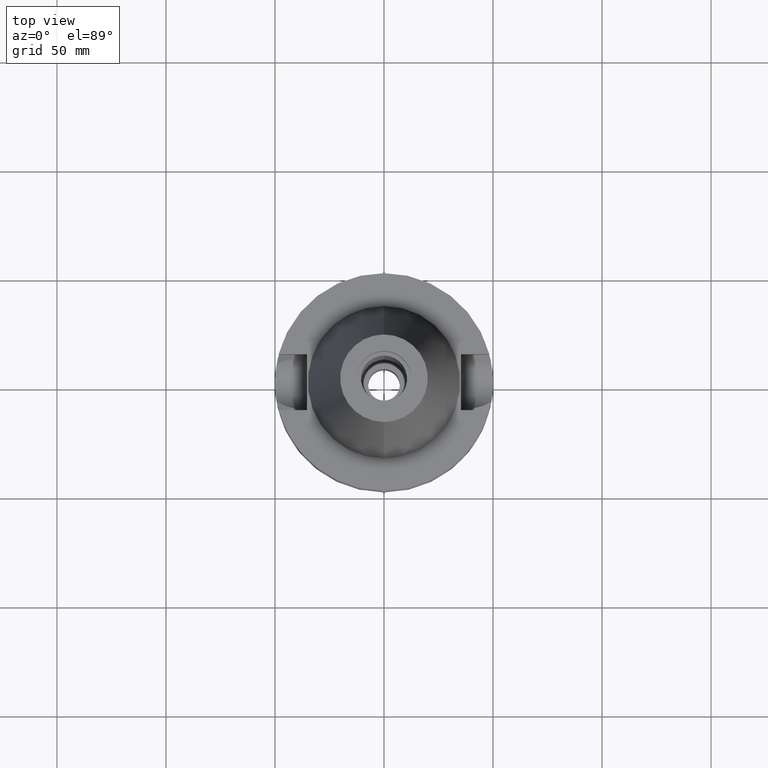
[diagram: clean part render]
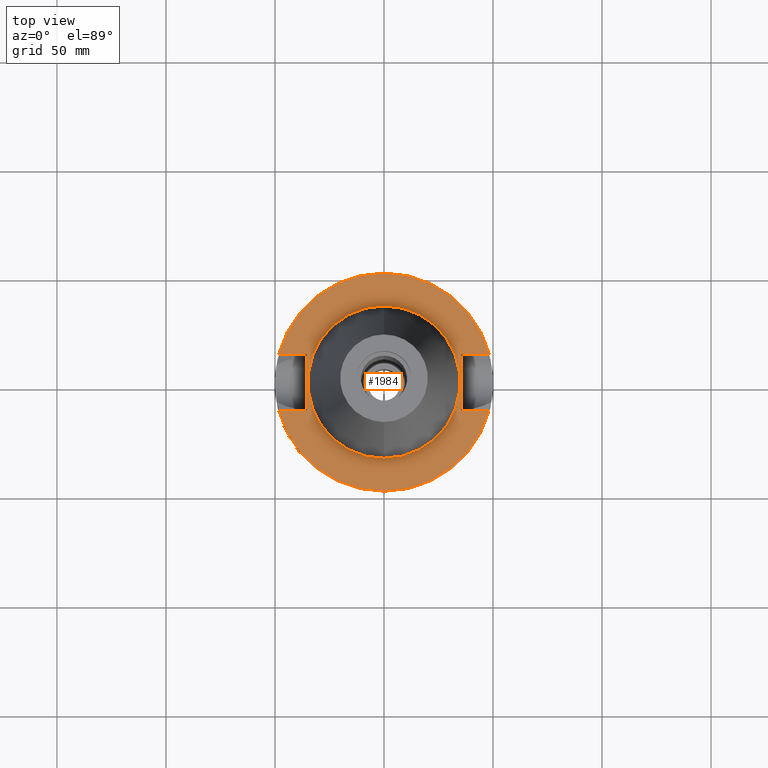
[diagram: same view with one face highlighted and labeled with its STEP entity id]
A machine part, top view. The second image highlights one B-rep face of the part: STEP entity #1984.
In plain terms, the highlighted planar face has unit normal (0, 0, -1).
Its self-contained STEP definition (entity closure, byte-faithful):
#736=DIRECTION('',(1.E0,0.E0,0.E0));
#737=VECTOR('',#736,1.292057015392E1);
#738=CARTESIAN_POINT('',(3.54E1,1.285E1,-1.5E0));
#739=LINE('',#738,#737);
#783=DIRECTION('',(0.E0,1.E0,0.E0));
#784=VECTOR('',#783,2.57E1);
#785=CARTESIAN_POINT('',(-3.54E1,-1.285E1,-1.5E0));
#786=LINE('',#785,#784);
#790=DIRECTION('',(-1.E0,0.E0,0.E0));
#791=VECTOR('',#790,1.292057015392E1);
#792=CARTESIAN_POINT('',(-3.54E1,1.285E1,-1.5E0));
#793=LINE('',#792,#791);
#797=CARTESIAN_POINT('',(0.E0,2.657606018830E-14,-1.5E0));
#798=DIRECTION('',(0.E0,0.E0,-1.E0));
#799=DIRECTION('',(-9.664114030784E-1,2.57E-1,0.E0));
#800=AXIS2_PLACEMENT_3D('',#797,#798,#799);
#805=CARTESIAN_POINT('',(0.E0,2.657606018830E-14,-1.5E0));
#806=DIRECTION('',(0.E0,0.E0,-1.E0));
#807=DIRECTION('',(0.E0,1.E0,0.E0));
#808=AXIS2_PLACEMENT_3D('',#805,#806,#807);
#813=DIRECTION('',(0.E0,-1.E0,0.E0));
#814=VECTOR('',#813,2.57E1);
#815=CARTESIAN_POINT('',(3.54E1,1.285E1,-1.5E0));
#816=LINE('',#815,#814);
#820=DIRECTION('',(1.E0,0.E0,0.E0));
#821=VECTOR('',#820,1.292057015392E1);
#822=CARTESIAN_POINT('',(3.54E1,-1.285E1,-1.5E0));
#823=LINE('',#822,#821);
#827=CARTESIAN_POINT('',(0.E0,2.657606018830E-14,-1.5E0));
#828=DIRECTION('',(0.E0,0.E0,-1.E0));
#829=DIRECTION('',(9.664114030784E-1,-2.57E-1,0.E0));
#830=AXIS2_PLACEMENT_3D('',#827,#828,#829);
#835=CARTESIAN_POINT('',(0.E0,2.657606018830E-14,-1.5E0));
#836=DIRECTION('',(0.E0,0.E0,-1.E0));
#837=DIRECTION('',(0.E0,-1.E0,0.E0));
#838=AXIS2_PLACEMENT_3D('',#835,#836,#837);
#843=CARTESIAN_POINT('',(0.E0,2.657606018830E-14,-1.5E0));
#844=DIRECTION('',(0.E0,0.E0,1.E0));
#845=DIRECTION('',(0.E0,-1.E0,0.E0));
#846=AXIS2_PLACEMENT_3D('',#843,#844,#845);
#851=CARTESIAN_POINT('',(0.E0,2.657606018830E-14,-1.5E0));
#852=DIRECTION('',(0.E0,0.E0,1.E0));
#853=DIRECTION('',(0.E0,1.E0,0.E0));
#854=AXIS2_PLACEMENT_3D('',#851,#852,#853);
#889=DIRECTION('',(-1.E0,0.E0,0.E0));
#890=VECTOR('',#889,1.292057015392E1);
#891=CARTESIAN_POINT('',(-3.54E1,-1.285E1,-1.5E0));
#892=LINE('',#891,#890);
#1259=CARTESIAN_POINT('',(-3.54E1,-1.285E1,-1.5E0));
#1260=VERTEX_POINT('',#1259);
#1261=CARTESIAN_POINT('',(-4.832057015392E1,-1.285E1,-1.5E0));
#1262=VERTEX_POINT('',#1261);
#1265=CARTESIAN_POINT('',(-3.54E1,1.285E1,-1.5E0));
#1266=VERTEX_POINT('',#1265);
#1267=CARTESIAN_POINT('',(-4.832057015392E1,1.285E1,-1.5E0));
#1268=VERTEX_POINT('',#1267);
#1269=CARTESIAN_POINT('',(-1.065814103640E-14,5.E1,-1.5E0));
#1270=CARTESIAN_POINT('',(4.832057015392E1,1.285E1,-1.5E0));
#1271=VERTEX_POINT('',#1269);
#1272=VERTEX_POINT('',#1270);
#1273=CARTESIAN_POINT('',(3.54E1,1.285E1,-1.5E0));
#1274=VERTEX_POINT('',#1273);
#1275=CARTESIAN_POINT('',(3.54E1,-1.285E1,-1.5E0));
#1276=VERTEX_POINT('',#1275);
#1277=CARTESIAN_POINT('',(4.832057015392E1,-1.285E1,-1.5E0));
#1278=VERTEX_POINT('',#1277);
#1279=CARTESIAN_POINT('',(1.065814103640E-14,-5.E1,-1.5E0));
#1280=VERTEX_POINT('',#1279);
#1281=CARTESIAN_POINT('',(0.E0,-3.4925E1,-1.5E0));
#1282=CARTESIAN_POINT('',(0.E0,3.4925E1,-1.5E0));
#1283=VERTEX_POINT('',#1281);
#1284=VERTEX_POINT('',#1282);
#1953=CARTESIAN_POINT('',(0.E0,1.206277097160E-14,-1.5E0));
#1954=DIRECTION('',(0.E0,0.E0,-1.E0));
#1955=DIRECTION('',(0.E0,-1.E0,0.E0));
#1956=AXIS2_PLACEMENT_3D('',#1953,#1954,#1955);
#1957=PLANE('',#1956);
#1959=ORIENTED_EDGE('',*,*,#1958,.T.);
#1961=ORIENTED_EDGE('',*,*,#1960,.T.);
#1963=ORIENTED_EDGE('',*,*,#1962,.T.);
#1965=ORIENTED_EDGE('',*,*,#1964,.T.);
#1966=ORIENTED_EDGE('',*,*,#1929,.F.);
#1967=ORIENTED_EDGE('',*,*,#1943,.T.);
#1969=ORIENTED_EDGE('',*,*,#1968,.T.);
#1971=ORIENTED_EDGE('',*,*,#1970,.T.);
#1973=ORIENTED_EDGE('',*,*,#1972,.T.);
#1975=ORIENTED_EDGE('',*,*,#1974,.F.);
#1976=EDGE_LOOP('',(#1959,#1961,#1963,#1965,#1966,#1967,#1969,#1971,#1973,
#1975));
#1977=FACE_OUTER_BOUND('',#1976,.F.);
#1979=ORIENTED_EDGE('',*,*,#1978,.T.);
#1981=ORIENTED_EDGE('',*,*,#1980,.T.);
#1982=EDGE_LOOP('',(#1979,#1981));
#1983=FACE_BOUND('',#1982,.F.);
#801=CIRCLE('',#800,5.E1);
#809=CIRCLE('',#808,5.E1);
#831=CIRCLE('',#830,5.E1);
#839=CIRCLE('',#838,5.E1);
#847=CIRCLE('',#846,3.4925E1);
#855=CIRCLE('',#854,3.4925E1);
#1929=EDGE_CURVE('',#1274,#1272,#739,.T.);
#1943=EDGE_CURVE('',#1274,#1276,#816,.T.);
#1958=EDGE_CURVE('',#1260,#1266,#786,.T.);
#1960=EDGE_CURVE('',#1266,#1268,#793,.T.);
#1962=EDGE_CURVE('',#1268,#1271,#801,.T.);
#1964=EDGE_CURVE('',#1271,#1272,#809,.T.);
#1968=EDGE_CURVE('',#1276,#1278,#823,.T.);
#1970=EDGE_CURVE('',#1278,#1280,#831,.T.);
#1972=EDGE_CURVE('',#1280,#1262,#839,.T.);
#1974=EDGE_CURVE('',#1260,#1262,#892,.T.);
#1978=EDGE_CURVE('',#1283,#1284,#847,.T.);
#1980=EDGE_CURVE('',#1284,#1283,#855,.T.);
#1984=ADVANCED_FACE('',(#1977,#1983),#1957,.F.);